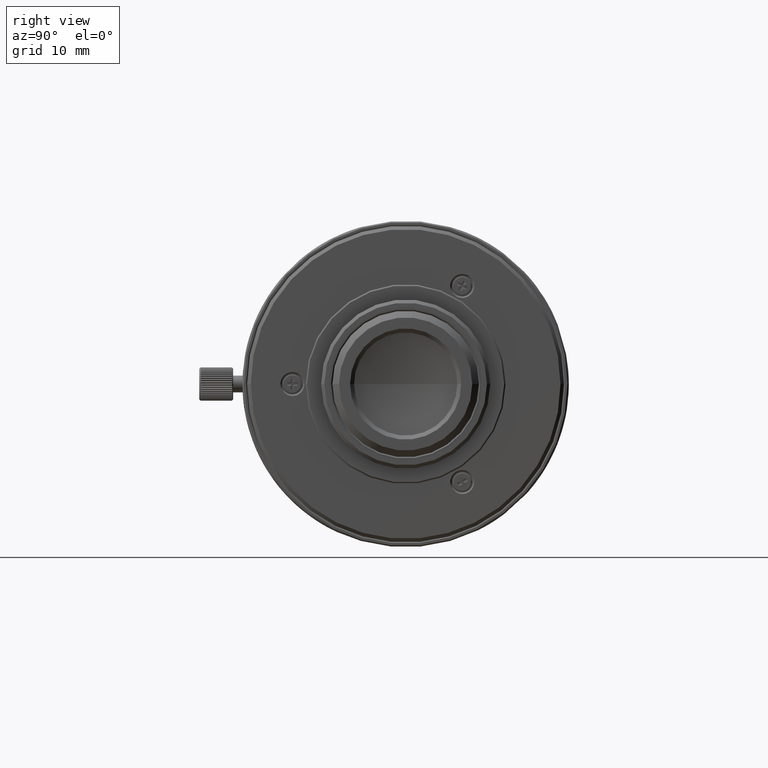
[diagram: clean part render]
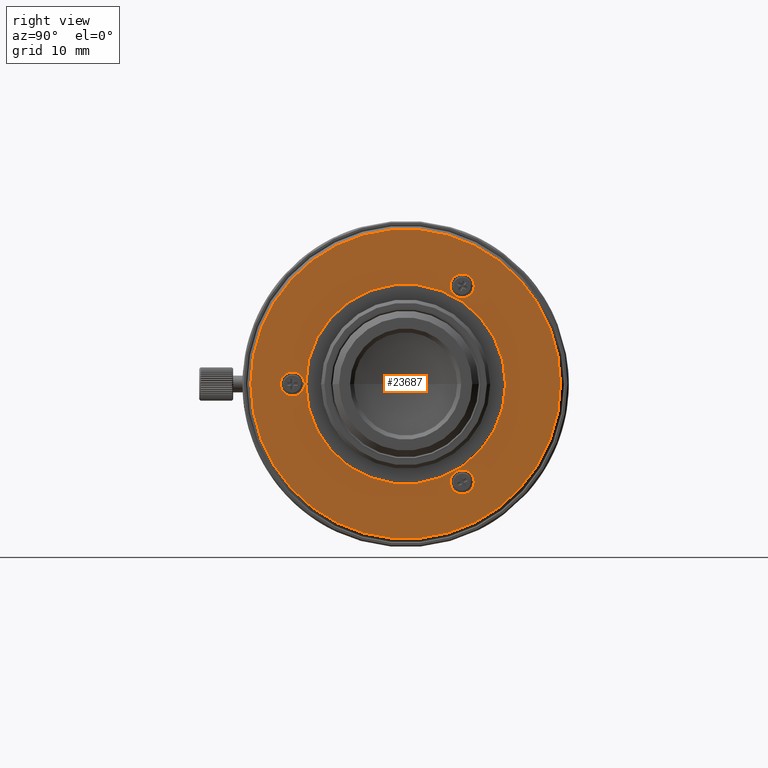
[diagram: same view with one face highlighted and labeled with its STEP entity id]
A machine part, right view. The second image highlights one B-rep face of the part: STEP entity #23687.
In plain terms, the highlighted planar face has unit normal (1, 0, 0).
Its self-contained STEP definition (entity closure, byte-faithful):
#3209 = DIRECTION ( 'NONE',  ( -1.000000000000000000, -1.776356839401000198E-14, -5.428990590417000337E-13 ) ) ;
#3642 = EDGE_CURVE ( 'NONE', #34154, #57118, #113561, .T. ) ;
#4615 = ORIENTED_EDGE ( 'NONE', *, *, #132945, .T. ) ;
#6186 = EDGE_LOOP ( 'NONE', ( #4615, #6351 ) ) ;
#6295 = VERTEX_POINT ( 'NONE', #9179 ) ;
#6351 = ORIENTED_EDGE ( 'NONE', *, *, #128501, .T. ) ;
#7574 = CARTESIAN_POINT ( 'NONE',  ( 0.4130000000008000050, -23.25000000000000000, -7.125340555128998420E-11 ) ) ;
#9179 = CARTESIAN_POINT ( 'NONE',  ( 0.4129999999903000152, 9.400000025797000447, 16.28127757626999639 ) ) ;
#10369 = CARTESIAN_POINT ( 'NONE',  ( 0.4129999999848000258, 0.000000000000000000, -2.229327833609000274E-13 ) ) ;
#10943 = CARTESIAN_POINT ( 'NONE',  ( 0.4130000000008999805, 23.25000000000000000, 2.578384750288999749E-10 ) ) ;
#11975 = EDGE_CURVE ( 'NONE', #100729, #13234, #18238, .T. ) ;
#12606 = ORIENTED_EDGE ( 'NONE', *, *, #33095, .T. ) ;
#13234 = VERTEX_POINT ( 'NONE', #39308 ) ;
#15712 = DIRECTION ( 'NONE',  ( 0.000000000000000000, 1.000000000000000000, 0.000000000000000000 ) ) ;
#17645 = CARTESIAN_POINT ( 'NONE',  ( 0.4130000000004000471, 7.599999969788000520, 13.16358615496999995 ) ) ;
#17750 = EDGE_LOOP ( 'NONE', ( #75115, #47009 ) ) ;
#18238 = CIRCLE ( 'NONE', #63487, 15.00000000000000000 ) ;
#20271 = DIRECTION ( 'NONE',  ( 0.000000000000000000, -1.000000000000000000, 0.000000000000000000 ) ) ;
#23687 = ADVANCED_FACE ( 'NONE', ( #25640, #47545, #24940, #135275, #56791 ), #80785, .T. ) ;
#24940 = FACE_BOUND ( 'NONE', #102681, .T. ) ;
#25640 = FACE_OUTER_BOUND ( 'NONE', #17750, .T. ) ;
#28398 = CIRCLE ( 'NONE', #107539, 15.00000000000000000 ) ;
#28472 = DIRECTION ( 'NONE',  ( -1.000000000000000000, 3.916865996105504998E-12, -8.961718808905619558E-12 ) ) ;
#29204 = EDGE_LOOP ( 'NONE', ( #93383, #69191 ) ) ;
#32175 = EDGE_CURVE ( 'NONE', #136941, #94995, #63348, .T. ) ;
#33095 = EDGE_CURVE ( 'NONE', #6295, #46579, #117278, .T. ) ;
#33322 = CARTESIAN_POINT ( 'NONE',  ( 0.4129999999996000204, 0.000000000000000000, -3.828048988907000044E-13 ) ) ;
#33606 = CARTESIAN_POINT ( 'NONE',  ( 0.4130000000051999853, 9.399999974206000530, -16.28127760603999974 ) ) ;
#33770 = DIRECTION ( 'NONE',  ( -9.719571309105618215E-12, -0.4999999999999731881, 0.8660254037844541397 ) ) ;
#34154 = VERTEX_POINT ( 'NONE', #10943 ) ;
#34773 = ORIENTED_EDGE ( 'NONE', *, *, #105861, .T. ) ;
#38505 = AXIS2_PLACEMENT_3D ( 'NONE', #138488, #52822, #105901 ) ;
#39308 = CARTESIAN_POINT ( 'NONE',  ( 0.4129999999985000114, -15.00000000000000000, -4.931655169152000594E-10 ) ) ;
#40016 = CARTESIAN_POINT ( 'NONE',  ( 0.4130000000000000338, -15.19999999999999929, -3.488689223794999635E-08 ) ) ;
#42598 = AXIS2_PLACEMENT_3D ( 'NONE', #10369, #129957, #20271 ) ;
#44408 = CARTESIAN_POINT ( 'NONE',  ( 0.4130000000000000338, -18.80000000000000071, 2.977984610512000138E-08 ) ) ;
#45782 = CARTESIAN_POINT ( 'NONE',  ( 0.4129999999901000085, 8.500000000003000267, 14.72243186434000073 ) ) ;
#46579 = VERTEX_POINT ( 'NONE', #17645 ) ;
#47009 = ORIENTED_EDGE ( 'NONE', *, *, #3642, .T. ) ;
#47523 = CIRCLE ( 'NONE', #97230, 1.799999999991998445 ) ;
#47545 = FACE_BOUND ( 'NONE', #29204, .T. ) ;
#47971 = DIRECTION ( 'NONE',  ( -1.000000000000000000, 2.591705378846065101E-11, -2.475351956386920109E-11 ) ) ;
#48247 = DIRECTION ( 'NONE',  ( 1.000000000000000000, 0.000000000000000000, 0.000000000000000000 ) ) ;
#49626 = CIRCLE ( 'NONE', #103804, 1.800000000000001377 ) ;
#52322 = VERTEX_POINT ( 'NONE', #105613 ) ;
#52822 = DIRECTION ( 'NONE',  ( -1.000000000000000000, 0.000000000000000000, 0.000000000000000000 ) ) ;
#55689 = DIRECTION ( 'NONE',  ( 8.480539043019424818E-12, -0.5000000000016812107, -0.8660254037834680396 ) ) ;
#56791 = FACE_BOUND ( 'NONE', #6186, .T. ) ;
#57118 = VERTEX_POINT ( 'NONE', #7574 ) ;
#58442 = CIRCLE ( 'NONE', #42598, 23.25000000000999734 ) ;
#63348 = CIRCLE ( 'NONE', #38505, 1.799999999999999600 ) ;
#63487 = AXIS2_PLACEMENT_3D ( 'NONE', #33322, #109078, #131706 ) ;
#69003 = CARTESIAN_POINT ( 'NONE',  ( 0.4129999999992999826, -17.00000000000000000, 0.000000000000000000 ) ) ;
#69191 = ORIENTED_EDGE ( 'NONE', *, *, #111320, .T. ) ;
#70385 = DIRECTION ( 'NONE',  ( -1.776886893795688313E-14, 1.000000000000000000, 0.000000000000000000 ) ) ;
#71650 = DIRECTION ( 'NONE',  ( 9.719511075608377877E-12, 0.4999999999998983036, -0.8660254037844973274 ) ) ;
#73279 = EDGE_LOOP ( 'NONE', ( #34773, #12606 ) ) ;
#75044 = ORIENTED_EDGE ( 'NONE', *, *, #101980, .T. ) ;
#75115 = ORIENTED_EDGE ( 'NONE', *, *, #126944, .T. ) ;
#76630 = DIRECTION ( 'NONE',  ( 1.000000000000000000, 0.000000000000000000, 9.539036227579999308E-13 ) ) ;
#76687 = AXIS2_PLACEMENT_3D ( 'NONE', #89073, #47971, #134333 ) ;
#78341 = DIRECTION ( 'NONE',  ( -1.000000000000000000, 1.528554851525094744E-11, -2.398078117033284928E-12 ) ) ;
#79049 = ORIENTED_EDGE ( 'NONE', *, *, #32175, .T. ) ;
#80785 = PLANE ( 'NONE',  #107354 ) ;
#82018 = DIRECTION ( 'NONE',  ( -1.000000000000000000, -6.297739560011890220E-28, 2.220446049250000061E-14 ) ) ;
#84120 = CARTESIAN_POINT ( 'NONE',  ( 0.4129999999998000271, 0.000000000000000000, 3.739231146937000648E-13 ) ) ;
#87251 = CARTESIAN_POINT ( 'NONE',  ( 0.4130000000148000283, 0.000000000000000000, 6.661338149042000360E-14 ) ) ;
#89073 = CARTESIAN_POINT ( 'NONE',  ( 0.4129999999564000213, 8.499999999994999555, 14.72243186434000073 ) ) ;
#93383 = ORIENTED_EDGE ( 'NONE', *, *, #11975, .T. ) ;
#94995 = VERTEX_POINT ( 'NONE', #40016 ) ;
#97230 = AXIS2_PLACEMENT_3D ( 'NONE', #108097, #78341, #33770 ) ;
#98463 = CARTESIAN_POINT ( 'NONE',  ( 0.4129999999985000114, 15.00000000000000000, 4.931308213280000766E-10 ) ) ;
#100729 = VERTEX_POINT ( 'NONE', #98463 ) ;
#101980 = EDGE_CURVE ( 'NONE', #94995, #136941, #122816, .T. ) ;
#102511 = AXIS2_PLACEMENT_3D ( 'NONE', #45782, #108080, #55689 ) ;
#102681 = EDGE_LOOP ( 'NONE', ( #75044, #79049 ) ) ;
#103804 = AXIS2_PLACEMENT_3D ( 'NONE', #125437, #28472, #71650 ) ;
#105613 = CARTESIAN_POINT ( 'NONE',  ( 0.4129999999935000110, 7.600000030209000279, -13.16358612007999973 ) ) ;
#105861 = EDGE_CURVE ( 'NONE', #46579, #6295, #125125, .T. ) ;
#105901 = DIRECTION ( 'NONE',  ( 0.000000000000000000, -1.000000000000000000, 0.000000000000000000 ) ) ;
#107354 = AXIS2_PLACEMENT_3D ( 'NONE', #133208, #48247, #15712 ) ;
#107539 = AXIS2_PLACEMENT_3D ( 'NONE', #84120, #82018, #125178 ) ;
#108080 = DIRECTION ( 'NONE',  ( -1.000000000000000000, -1.108447206209183958E-11, -3.392850889017095020E-12 ) ) ;
#108097 = CARTESIAN_POINT ( 'NONE',  ( 0.4129999999849000014, 8.499999999998999911, -14.72243186434000073 ) ) ;
#109078 = DIRECTION ( 'NONE',  ( -1.000000000000000000, 1.049185003943885972E-27, -4.440892098500999766E-14 ) ) ;
#111320 = EDGE_CURVE ( 'NONE', #13234, #100729, #28398, .T. ) ;
#113561 = CIRCLE ( 'NONE', #124854, 23.25000000000000000 ) ;
#117278 = CIRCLE ( 'NONE', #76687, 1.799999999984001509 ) ;
#122816 = CIRCLE ( 'NONE', #131826, 1.799999999999999600 ) ;
#124854 = AXIS2_PLACEMENT_3D ( 'NONE', #87251, #76630, #129729 ) ;
#125125 = CIRCLE ( 'NONE', #102511, 1.799999999995999245 ) ;
#125178 = DIRECTION ( 'NONE',  ( 0.000000000000000000, -1.000000000000000000, -2.836249753574999938E-14 ) ) ;
#125437 = CARTESIAN_POINT ( 'NONE',  ( 0.4129999999986000425, 8.500000000001000089, -14.72243186434000073 ) ) ;
#126944 = EDGE_CURVE ( 'NONE', #57118, #34154, #58442, .T. ) ;
#128501 = EDGE_CURVE ( 'NONE', #137264, #52322, #49626, .T. ) ;
#129729 = DIRECTION ( 'NONE',  ( 0.000000000000000000, 1.000000000000000000, 0.000000000000000000 ) ) ;
#129957 = DIRECTION ( 'NONE',  ( 1.000000000000000000, 0.000000000000000000, 9.769962616702001576E-13 ) ) ;
#131706 = DIRECTION ( 'NONE',  ( 0.000000000000000000, 1.000000000000000000, 2.362554596402000029E-14 ) ) ;
#131826 = AXIS2_PLACEMENT_3D ( 'NONE', #69003, #3209, #70385 ) ;
#132945 = EDGE_CURVE ( 'NONE', #52322, #137264, #47523, .T. ) ;
#133208 = CARTESIAN_POINT ( 'NONE',  ( 0.4130000000000000338, 0.000000000000000000, 0.000000000000000000 ) ) ;
#134333 = DIRECTION ( 'NONE',  ( -8.478641689274083576E-12, 0.5000000000033143488, 0.8660254037825250162 ) ) ;
#135275 = FACE_BOUND ( 'NONE', #73279, .T. ) ;
#136941 = VERTEX_POINT ( 'NONE', #44408 ) ;
#137264 = VERTEX_POINT ( 'NONE', #33606 ) ;
#138488 = CARTESIAN_POINT ( 'NONE',  ( 0.4130000000000000338, -17.00000000000000000, 0.000000000000000000 ) ) ;